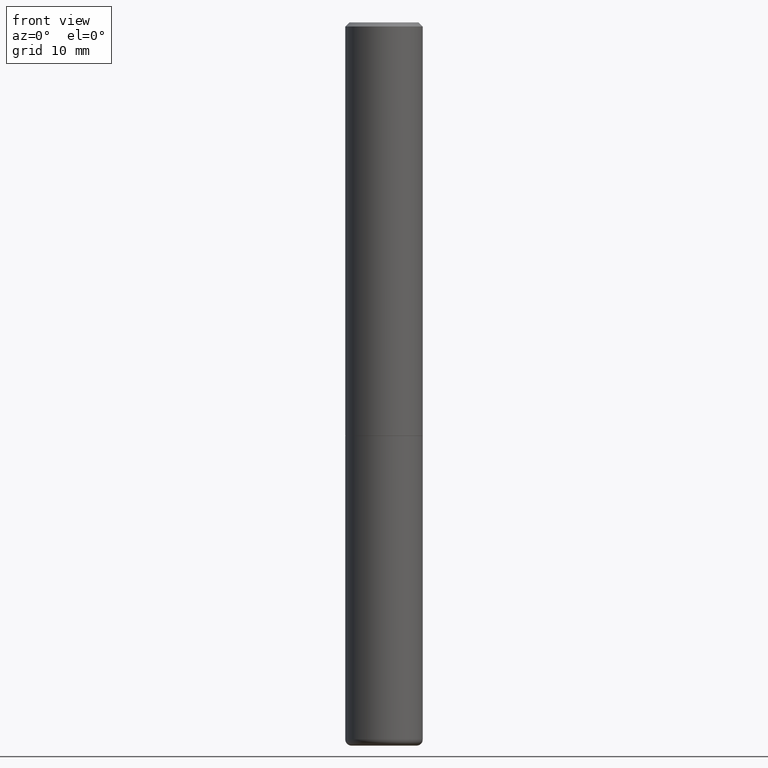
[diagram: clean part render]
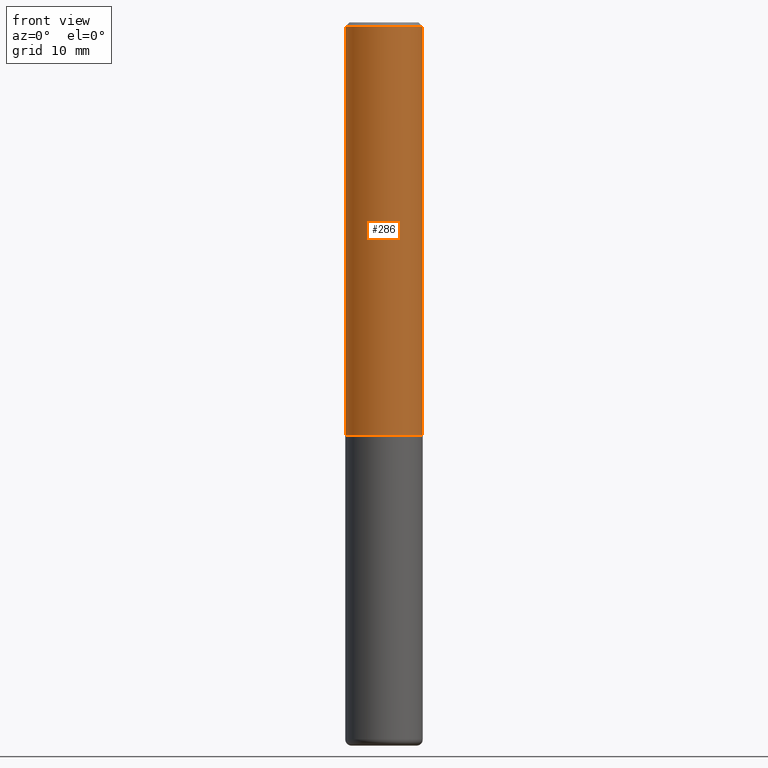
[diagram: same view with one face highlighted and labeled with its STEP entity id]
A machine part, front view. The second image highlights one B-rep face of the part: STEP entity #286.
In plain terms, the highlighted cylindrical surface (partial cylindrical patch) has radius 4.7625 mm, axis along (-0, 0, 1).
Its self-contained STEP definition (entity closure, byte-faithful):
#26 = ORIENTED_EDGE ( 'NONE', *, *, #130, .F. ) ;
#29 = ORIENTED_EDGE ( 'NONE', *, *, #308, .T. ) ;
#36 = DIRECTION ( 'NONE',  ( -2.445468806185136597E-29, 3.491481338843145583E-15, 1.000000000000000000 ) ) ;
#37 = FACE_OUTER_BOUND ( 'NONE', #245, .T. ) ;
#39 = DIRECTION ( 'NONE',  ( -2.445468806185136597E-29, 3.491481338843145583E-15, 1.000000000000000000 ) ) ;
#45 = LINE ( 'NONE', #175, #151 ) ;
#52 = VERTEX_POINT ( 'NONE', #309 ) ;
#55 = VERTEX_POINT ( 'NONE', #374 ) ;
#56 = CARTESIAN_POINT ( 'NONE',  ( 0.1875000000000000555, -1.356173001359025663E-15, -0.02000000000000003858 ) ) ;
#58 = EDGE_CURVE ( 'NONE', #55, #237, #409, .T. ) ;
#65 = VERTEX_POINT ( 'NONE', #273 ) ;
#67 = DIRECTION ( 'NONE',  ( 1.000000000000000000, -6.982962677686266711E-15, 4.876176775795936914E-29 ) ) ;
#76 = DIRECTION ( 'NONE',  ( -2.445468806185136597E-29, 3.491481338843145583E-15, 1.000000000000000000 ) ) ;
#78 = DIRECTION ( 'NONE',  ( 1.000000000000000000, -6.982962677686265922E-15, 0.000000000000000000 ) ) ;
#82 = CARTESIAN_POINT ( 'NONE',  ( 0.1875000000000001388, -1.309305502066175994E-15, 9.142831454617388019E-30 ) ) ;
#90 = VECTOR ( 'NONE', #173, 39.37007874015748143 ) ;
#91 = AXIS2_PLACEMENT_3D ( 'NONE', #193, #76, #78 ) ;
#130 = EDGE_CURVE ( 'NONE', #65, #52, #45, .T. ) ;
#142 = ORIENTED_EDGE ( 'NONE', *, *, #345, .F. ) ;
#144 = CIRCLE ( 'NONE', #158, 0.1875000000000002498 ) ;
#151 = VECTOR ( 'NONE', #307, 39.37007874015748143 ) ;
#158 = AXIS2_PLACEMENT_3D ( 'NONE', #390, #36, #196 ) ;
#173 = DIRECTION ( 'NONE',  ( -2.445468806185136877E-29, 3.491481338843145188E-15, 1.000000000000000000 ) ) ;
#175 = CARTESIAN_POINT ( 'NONE',  ( -0.1875000000000001388, 1.332267629550188835E-15, -9.223003294227954997E-30 ) ) ;
#193 = CARTESIAN_POINT ( 'NONE',  ( 4.890937612370282792E-31, -6.982962677686303935E-17, -0.02000000000000003858 ) ) ;
#196 = DIRECTION ( 'NONE',  ( 1.000000000000000000, -6.982962677686269077E-15, 0.000000000000000000 ) ) ;
#227 = AXIS2_PLACEMENT_3D ( 'NONE', #332, #39, #67 ) ;
#237 = VERTEX_POINT ( 'NONE', #56 ) ;
#245 = EDGE_LOOP ( 'NONE', ( #26, #29, #294, #142 ) ) ;
#253 = CIRCLE ( 'NONE', #91, 0.1875000000000000555 ) ;
#273 = CARTESIAN_POINT ( 'NONE',  ( -0.1875000000000002220, -2.192382782011963935E-15, -1.998999999999999666 ) ) ;
#286 = ADVANCED_FACE ( 'NONE', ( #37 ), #354, .T. ) ;
#294 = ORIENTED_EDGE ( 'NONE', *, *, #58, .T. ) ;
#307 = DIRECTION ( 'NONE',  ( -2.445468806185136877E-29, 3.491481338843145188E-15, 1.000000000000000000 ) ) ;
#308 = EDGE_CURVE ( 'NONE', #65, #55, #144, .T. ) ;
#309 = CARTESIAN_POINT ( 'NONE',  ( -0.1875000000000000555, 1.239475875289312104E-15, -0.02000000000000003858 ) ) ;
#332 = CARTESIAN_POINT ( 'NONE',  ( 0.000000000000000000, 0.000000000000000000, 0.000000000000000000 ) ) ;
#345 = EDGE_CURVE ( 'NONE', #52, #237, #253, .T. ) ;
#354 = CYLINDRICAL_SURFACE ( 'NONE', #227, 0.1875000000000001388 ) ;
#374 = CARTESIAN_POINT ( 'NONE',  ( 0.1875000000000002498, -8.288776698413623955E-15, -1.998999999999999666 ) ) ;
#390 = CARTESIAN_POINT ( 'NONE',  ( 4.888492143564087030E-29, -6.979471196347446580E-15, -1.998999999999999666 ) ) ;
#409 = LINE ( 'NONE', #82, #90 ) ;